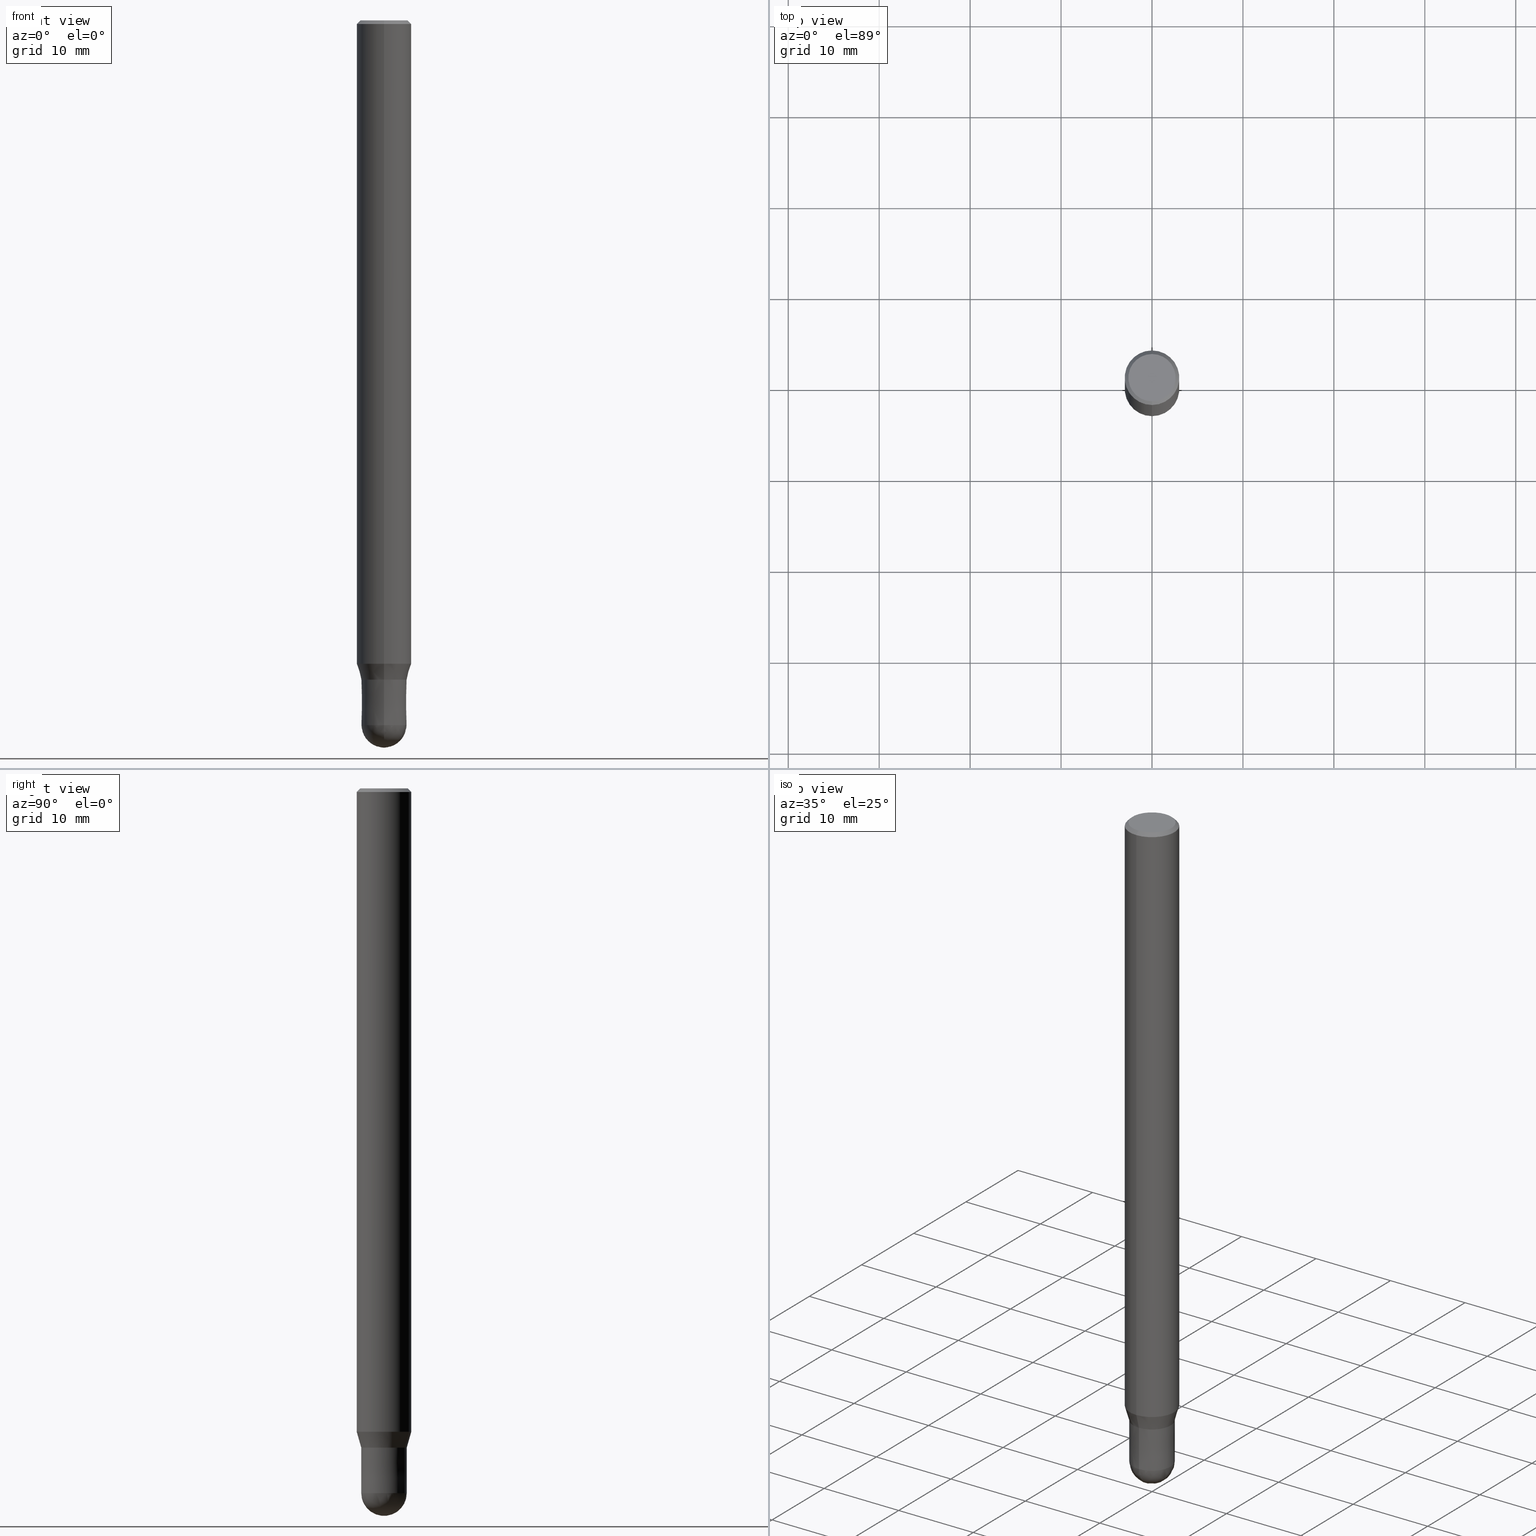
[diagram: canonical four-view strip — front | top / right | iso, engineering-drawing reading convention]
A machine part, canonical four-view strip (front | top / right | iso — engineering-drawing reading convention). The complete STEP part file that produces these views, byte-faithful:
ISO-10303-21;
HEADER;
FILE_DESCRIPTION(('no description'),'unknown implementation level');
FILE_NAME('CFB3050-0750-Huellk.stp','  ',('CIMSOURCE GmbH'),('CADClick - KiM GmbH - www.kimweb.de'),'unknown preprocess','ACIS','unknown authorization');
FILE_SCHEMA(('automotive_design'));
ENDSEC;
DATA;
#1=MECHANICAL_DESIGN_GEOMETRIC_PRESENTATION_REPRESENTATION(' ',(#14,#15,#16,#17,#18,#19,#20,#21,#22,#23,#24,#25,#26,#27,#28,#29,#30,#31,#32,#33,#34,#35,#36,#37,#38,#39,#40,#41,#42,#43,#44,#45,#46,#47,#48,#49,#50,#51,#52,#53,#54,#55,#56,#57,#58,#59,#60,#61,#62,#63,#64,#65,#66),#10);
#2=PRODUCT_DEFINITION_CONTEXT('',#67,'design');
#3=APPLICATION_PROTOCOL_DEFINITION('INTERNATIONAL STANDARD','automotive_design',1994,#67);
#4=PRODUCT_CATEGORY_RELATIONSHIP('NONE','NONE',#68,#69);
#5=SHAPE_DEFINITION_REPRESENTATION(#70,#71);
#6=PRODUCT_DEFINITION_CONTEXT('',#72,'design');
#7=APPLICATION_PROTOCOL_DEFINITION('INTERNATIONAL STANDARD','automotive_design',1994,#72);
#8=PRODUCT_CATEGORY_RELATIONSHIP('NONE','NONE',#73,#74);
#9=SHAPE_DEFINITION_REPRESENTATION(#75,#76);
#10= (GEOMETRIC_REPRESENTATION_CONTEXT(3)GLOBAL_UNCERTAINTY_ASSIGNED_CONTEXT((#79))GLOBAL_UNIT_ASSIGNED_CONTEXT((#81,#82,#83))REPRESENTATION_CONTEXT('NONE','WORKSPACE'));
#14=STYLED_ITEM('',(#85),#86);
#15=STYLED_ITEM('',(#87),#88);
#16=STYLED_ITEM('',(#89),#90);
#17=STYLED_ITEM('',(#91),#92);
#18=STYLED_ITEM('',(#93),#94);
#19=STYLED_ITEM('',(#95),#96);
#20=STYLED_ITEM('',(#97),#98);
#21=STYLED_ITEM('',(#99),#100);
#22=STYLED_ITEM('',(#101),#102);
#23=STYLED_ITEM('',(#103),#104);
#24=STYLED_ITEM('',(#105),#106);
#25=STYLED_ITEM('',(#107),#108);
#26=STYLED_ITEM('',(#109),#110);
#27=STYLED_ITEM('',(#111),#112);
#28=STYLED_ITEM('',(#113),#114);
#29=STYLED_ITEM('',(#115),#116);
#30=STYLED_ITEM('',(#117),#118);
#31=STYLED_ITEM('',(#119),#120);
#32=STYLED_ITEM('',(#121),#122);
#33=STYLED_ITEM('',(#123),#124);
#34=STYLED_ITEM('',(#125),#126);
#35=STYLED_ITEM('',(#127),#128);
#36=STYLED_ITEM('',(#129),#130);
#37=STYLED_ITEM('',(#131),#132);
#38=STYLED_ITEM('',(#133),#134);
#39=STYLED_ITEM('',(#135),#136);
#40=STYLED_ITEM('',(#137),#138);
#41=STYLED_ITEM('',(#139),#140);
#42=STYLED_ITEM('',(#141),#142);
#43=STYLED_ITEM('',(#143),#144);
#44=STYLED_ITEM('',(#145),#146);
#45=STYLED_ITEM('',(#147),#148);
#46=STYLED_ITEM('',(#149),#150);
#47=STYLED_ITEM('',(#151),#152);
#48=STYLED_ITEM('',(#153),#154);
#49=STYLED_ITEM('',(#155),#156);
#50=STYLED_ITEM('',(#157),#158);
#51=STYLED_ITEM('',(#159),#160);
#52=STYLED_ITEM('',(#161),#162);
#53=STYLED_ITEM('',(#163),#164);
#54=STYLED_ITEM('',(#165),#166);
#55=STYLED_ITEM('',(#167),#168);
#56=STYLED_ITEM('',(#169),#170);
#57=STYLED_ITEM('',(#171),#172);
#58=STYLED_ITEM('',(#173),#174);
#59=STYLED_ITEM('',(#175),#176);
#60=STYLED_ITEM('',(#177),#178);
#61=STYLED_ITEM('',(#179),#180);
#62=STYLED_ITEM('',(#181),#182);
#63=STYLED_ITEM('',(#183),#184);
#64=STYLED_ITEM('',(#185),#186);
#65=STYLED_ITEM('',(#187),#188);
#66=STYLED_ITEM('',(#189),#190);
#67=APPLICATION_CONTEXT(' ');
#68=PRODUCT_CATEGORY('part','NONE');
#69=PRODUCT_RELATED_PRODUCT_CATEGORY('detail',' ',(#191));
#70=PRODUCT_DEFINITION_SHAPE('NONE','NONE',#192);
#71=ADVANCED_BREP_SHAPE_REPRESENTATION('1',(#146,#193),#10);
#72=APPLICATION_CONTEXT(' ');
#73=PRODUCT_CATEGORY('part','NONE');
#74=PRODUCT_RELATED_PRODUCT_CATEGORY('detail',' ',(#194));
#75=PRODUCT_DEFINITION_SHAPE('NONE','NONE',#195);
#76=ADVANCED_BREP_SHAPE_REPRESENTATION('2',(#166,#196),#10);
#79=UNCERTAINTY_MEASURE_WITH_UNIT(LENGTH_MEASURE(1.0E-006),#81,'','');
#81= (CONVERSION_BASED_UNIT('MILLIMETRE',#199)LENGTH_UNIT()NAMED_UNIT(#202));
#82= (NAMED_UNIT(#204)PLANE_ANGLE_UNIT()SI_UNIT($,.RADIAN.));
#83= (NAMED_UNIT(#204)SOLID_ANGLE_UNIT()SI_UNIT($,.STERADIAN.));
#85=PRESENTATION_STYLE_ASSIGNMENT((#210));
#86=ADVANCED_FACE('',(#211),#212,.T.);
#87=PRESENTATION_STYLE_ASSIGNMENT((#213));
#88=EDGE_CURVE('',#128,#178,#214,.T.);
#89=PRESENTATION_STYLE_ASSIGNMENT((#215));
#90=EDGE_CURVE('',#144,#140,#216,.T.);
#91=PRESENTATION_STYLE_ASSIGNMENT((#217));
#92=VERTEX_POINT('',#218);
#93=PRESENTATION_STYLE_ASSIGNMENT((#219));
#94=EDGE_CURVE('',#92,#154,#220,.T.);
#95=PRESENTATION_STYLE_ASSIGNMENT((#221));
#96=ADVANCED_FACE('',(#222),#223,.T.);
#97=PRESENTATION_STYLE_ASSIGNMENT((#224));
#98=EDGE_CURVE('',#154,#92,#225,.T.);
#99=PRESENTATION_STYLE_ASSIGNMENT((#226));
#100=ADVANCED_FACE('',(#227),#228,.T.);
#101=PRESENTATION_STYLE_ASSIGNMENT((#229));
#102=VERTEX_POINT('',#230);
#103=PRESENTATION_STYLE_ASSIGNMENT((#231));
#104=EDGE_CURVE('',#168,#178,#232,.T.);
#105=PRESENTATION_STYLE_ASSIGNMENT((#233));
#106=EDGE_CURVE('',#190,#136,#234,.T.);
#107=PRESENTATION_STYLE_ASSIGNMENT((#235));
#108=EDGE_CURVE('',#122,#168,#236,.T.);
#109=PRESENTATION_STYLE_ASSIGNMENT((#237));
#110=VERTEX_POINT('',#238);
#111=PRESENTATION_STYLE_ASSIGNMENT((#239));
#112=EDGE_CURVE('',#136,#186,#240,.T.);
#113=PRESENTATION_STYLE_ASSIGNMENT((#241));
#114=ADVANCED_FACE('',(#242),#243,.T.);
#115=PRESENTATION_STYLE_ASSIGNMENT((#244));
#116=ADVANCED_FACE('',(#245),#246,.T.);
#117=PRESENTATION_STYLE_ASSIGNMENT((#247));
#118=ADVANCED_FACE('',(#248),#249,.T.);
#119=PRESENTATION_STYLE_ASSIGNMENT((#250));
#120=EDGE_CURVE('',#92,#154,#251,.T.);
#121=PRESENTATION_STYLE_ASSIGNMENT((#252));
#122=VERTEX_POINT('',#253);
#123=PRESENTATION_STYLE_ASSIGNMENT((#254));
#124=EDGE_CURVE('',#186,#136,#255,.T.);
#125=PRESENTATION_STYLE_ASSIGNMENT((#256));
#126=ADVANCED_FACE('',(#257),#258,.T.);
#127=PRESENTATION_STYLE_ASSIGNMENT((#259));
#128=VERTEX_POINT('',#260);
#129=PRESENTATION_STYLE_ASSIGNMENT((#261));
#130=ADVANCED_FACE('',(#262),#263,.T.);
#131=PRESENTATION_STYLE_ASSIGNMENT((#264));
#132=EDGE_CURVE('',#102,#180,#265,.T.);
#133=PRESENTATION_STYLE_ASSIGNMENT((#266));
#134=EDGE_CURVE('',#178,#140,#267,.T.);
#135=PRESENTATION_STYLE_ASSIGNMENT((#268));
#136=VERTEX_POINT('',#269);
#137=PRESENTATION_STYLE_ASSIGNMENT((#270));
#138=EDGE_CURVE('',#140,#144,#271,.T.);
#139=PRESENTATION_STYLE_ASSIGNMENT((#272));
#140=VERTEX_POINT('',#273);
#141=PRESENTATION_STYLE_ASSIGNMENT((#274));
#142=ADVANCED_FACE('',(#275,#276),#277,.T.);
#143=PRESENTATION_STYLE_ASSIGNMENT((#278));
#144=VERTEX_POINT('',#279);
#145=PRESENTATION_STYLE_ASSIGNMENT((#280));
#146=MANIFOLD_SOLID_BREP('1',#281);
#147=PRESENTATION_STYLE_ASSIGNMENT((#282));
#148=EDGE_CURVE('',#168,#122,#283,.T.);
#149=PRESENTATION_STYLE_ASSIGNMENT((#284));
#150=EDGE_CURVE('',#144,#128,#285,.T.);
#151=PRESENTATION_STYLE_ASSIGNMENT((#286));
#152=ADVANCED_FACE('',(#287),#288,.T.);
#153=PRESENTATION_STYLE_ASSIGNMENT((#289));
#154=VERTEX_POINT('',#290);
#155=PRESENTATION_STYLE_ASSIGNMENT((#291));
#156=EDGE_CURVE('',#190,#110,#292,.T.);
#157=PRESENTATION_STYLE_ASSIGNMENT((#293));
#158=ADVANCED_FACE('',(#294),#295,.T.);
#159=PRESENTATION_STYLE_ASSIGNMENT((#296));
#160=EDGE_CURVE('',#186,#110,#297,.T.);
#161=PRESENTATION_STYLE_ASSIGNMENT((#298));
#162=ADVANCED_FACE('',(#299),#300,.T.);
#163=PRESENTATION_STYLE_ASSIGNMENT((#301));
#164=EDGE_CURVE('',#92,#180,#302,.T.);
#165=PRESENTATION_STYLE_ASSIGNMENT((#303));
#166=MANIFOLD_SOLID_BREP('2',#304);
#167=PRESENTATION_STYLE_ASSIGNMENT((#305));
#168=VERTEX_POINT('',#306);
#169=PRESENTATION_STYLE_ASSIGNMENT((#307));
#170=EDGE_CURVE('',#180,#102,#308,.T.);
#171=PRESENTATION_STYLE_ASSIGNMENT((#309));
#172=EDGE_CURVE('',#128,#122,#310,.T.);
#173=PRESENTATION_STYLE_ASSIGNMENT((#311));
#174=EDGE_CURVE('',#178,#128,#312,.T.);
#175=PRESENTATION_STYLE_ASSIGNMENT((#313));
#176=ADVANCED_FACE('',(#314),#315,.T.);
#177=PRESENTATION_STYLE_ASSIGNMENT((#316));
#178=VERTEX_POINT('',#317);
#179=PRESENTATION_STYLE_ASSIGNMENT((#318));
#180=VERTEX_POINT('',#319);
#181=PRESENTATION_STYLE_ASSIGNMENT((#320));
#182=ADVANCED_FACE('',(#321),#322,.T.);
#183=PRESENTATION_STYLE_ASSIGNMENT((#323));
#184=EDGE_CURVE('',#102,#154,#324,.T.);
#185=PRESENTATION_STYLE_ASSIGNMENT((#325));
#186=VERTEX_POINT('',#326);
#187=PRESENTATION_STYLE_ASSIGNMENT((#327));
#188=EDGE_CURVE('',#110,#190,#328,.T.);
#189=PRESENTATION_STYLE_ASSIGNMENT((#329));
#190=VERTEX_POINT('',#330);
#191=PRODUCT('1','1','PART-1-DESC',(#331));
#192=PRODUCT_DEFINITION('NONE','NONE',#332,#2);
#193=AXIS2_PLACEMENT_3D('',#333,#334,#335);
#194=PRODUCT('2','2','PART-2-DESC',(#336));
#195=PRODUCT_DEFINITION('NONE','NONE',#337,#6);
#196=AXIS2_PLACEMENT_3D('',#338,#339,#340);
#199=LENGTH_MEASURE_WITH_UNIT(LENGTH_MEASURE(1.0),#341);
#202=DIMENSIONAL_EXPONENTS(1.0,0.0,0.0,0.0,0.0,0.0,0.0);
#204=DIMENSIONAL_EXPONENTS(0.0,0.0,0.0,0.0,0.0,0.0,0.0);
#210=SURFACE_STYLE_USAGE(.BOTH.,#342);
#211=FACE_OUTER_BOUND('',#343,.T.);
#212=CONICAL_SURFACE('',#344,2.8,0.785398163397441);
#213=CURVE_STYLE('',#345,POSITIVE_LENGTH_MEASURE(1.0E-006),#346);
#214=CIRCLE('',#347,3.0);
#215=CURVE_STYLE('',#348,POSITIVE_LENGTH_MEASURE(1.0E-006),#349);
#216=CIRCLE('',#350,3.0);
#217=POINT_STYLE(' ',#351,POSITIVE_LENGTH_MEASURE(1.0E-006),#352);
#218=CARTESIAN_POINT('',(3.06151588455594E-016,-2.5,-77.5));
#219=CURVE_STYLE('',#353,POSITIVE_LENGTH_MEASURE(1.0E-006),#354);
#220=CIRCLE('',#355,2.5);
#221=SURFACE_STYLE_USAGE(.BOTH.,#356);
#222=FACE_OUTER_BOUND('',#357,.T.);
#223=CONICAL_SURFACE('',#358,2.8,0.785398163397441);
#224=CURVE_STYLE('',#359,POSITIVE_LENGTH_MEASURE(1.0E-006),#360);
#225=CIRCLE('',#361,2.5);
#226=SURFACE_STYLE_USAGE(.BOTH.,#362);
#227=FACE_OUTER_BOUND('',#363,.T.);
#228=PLANE('',#364);
#229=POINT_STYLE(' ',#365,POSITIVE_LENGTH_MEASURE(1.0E-006),#366);
#230=CARTESIAN_POINT('',(0.0,2.4999,-72.5));
#231=CURVE_STYLE('',#367,POSITIVE_LENGTH_MEASURE(1.0E-006),#368);
#232=LINE('',#369,#370);
#233=CURVE_STYLE('',#371,POSITIVE_LENGTH_MEASURE(1.0E-006),#372);
#234=LINE('',#373,#374);
#235=CURVE_STYLE('',#375,POSITIVE_LENGTH_MEASURE(1.0E-006),#376);
#236=CIRCLE('',#377,2.6);
#237=POINT_STYLE(' ',#378,POSITIVE_LENGTH_MEASURE(1.0E-006),#379);
#238=CARTESIAN_POINT('',(3.67375783114944E-016,-2.99995,-70.756));
#239=CURVE_STYLE('',#380,POSITIVE_LENGTH_MEASURE(1.0E-006),#381);
#240=CIRCLE('',#382,2.49995);
#241=SURFACE_STYLE_USAGE(.BOTH.,#383);
#242=FACE_OUTER_BOUND('',#384,.T.);
#243=PLANE('',#385);
#244=SURFACE_STYLE_USAGE(.BOTH.,#386);
#245=FACE_OUTER_BOUND('',#387,.T.);
#246=PLANE('',#388);
#247=SURFACE_STYLE_USAGE(.BOTH.,#389);
#248=FACE_OUTER_BOUND('',#390,.T.);
#249=CONICAL_SURFACE('',#391,2.49995,1.99999999974644E-005);
#250=CURVE_STYLE('',#392,POSITIVE_LENGTH_MEASURE(1.0E-006),#393);
#251=CIRCLE('',#394,2.5);
#252=POINT_STYLE(' ',#395,POSITIVE_LENGTH_MEASURE(1.0E-006),#396);
#253=CARTESIAN_POINT('',(3.18397651993818E-016,-2.6,0.0));
#254=CURVE_STYLE('',#397,POSITIVE_LENGTH_MEASURE(1.0E-006),#398);
#255=CIRCLE('',#399,2.49995);
#256=SURFACE_STYLE_USAGE(.BOTH.,#400);
#257=FACE_OUTER_BOUND('',#401,.T.);
#258=CYLINDRICAL_SURFACE('',#402,3.0);
#259=POINT_STYLE(' ',#403,POSITIVE_LENGTH_MEASURE(1.0E-006),#404);
#260=CARTESIAN_POINT('',(3.67381906146713E-016,-3.0,-0.400000000000006));
#261=SURFACE_STYLE_USAGE(.BOTH.,#405);
#262=FACE_OUTER_BOUND('',#406,.T.);
#263=CYLINDRICAL_SURFACE('',#407,3.0);
#264=CURVE_STYLE('',#408,POSITIVE_LENGTH_MEASURE(1.0E-006),#409);
#265=CIRCLE('',#410,2.4999);
#266=CURVE_STYLE('',#411,POSITIVE_LENGTH_MEASURE(1.0E-006),#412);
#267=LINE('',#413,#414);
#268=POINT_STYLE(' ',#415,POSITIVE_LENGTH_MEASURE(1.0E-006),#416);
#269=CARTESIAN_POINT('',(0.0,2.49995,-72.5));
#270=CURVE_STYLE('',#417,POSITIVE_LENGTH_MEASURE(1.0E-006),#418);
#271=CIRCLE('',#419,3.0);
#272=POINT_STYLE(' ',#420,POSITIVE_LENGTH_MEASURE(1.0E-006),#421);
#273=CARTESIAN_POINT('',(0.0,3.0,-70.756));
#274=SURFACE_STYLE_USAGE(.BOTH.,#422);
#275=FACE_OUTER_BOUND('',#423,.T.);
#276=FACE_BOUND('',#424,.T.);
#277=PLANE('',#425);
#278=POINT_STYLE(' ',#426,POSITIVE_LENGTH_MEASURE(1.0E-006),#427);
#279=CARTESIAN_POINT('',(3.67381906146713E-016,-3.0,-70.756));
#280=SURFACE_STYLE_USAGE(.BOTH.,#428);
#281=CLOSED_SHELL('',(#158,#130,#86,#142,#100,#96,#126,#176,#116));
#282=CURVE_STYLE('',#429,POSITIVE_LENGTH_MEASURE(1.0E-006),#430);
#283=CIRCLE('',#431,2.6);
#284=CURVE_STYLE('',#432,POSITIVE_LENGTH_MEASURE(1.0E-006),#433);
#285=LINE('',#434,#435);
#286=SURFACE_STYLE_USAGE(.BOTH.,#436);
#287=FACE_OUTER_BOUND('',#437,.T.);
#288=SPHERICAL_SURFACE('',#438,2.5);
#289=POINT_STYLE(' ',#439,POSITIVE_LENGTH_MEASURE(1.0E-006),#440);
#290=CARTESIAN_POINT('',(0.0,2.5,-77.5));
#291=CURVE_STYLE('',#441,POSITIVE_LENGTH_MEASURE(1.0E-006),#442);
#292=CIRCLE('',#443,2.99995);
#293=SURFACE_STYLE_USAGE(.BOTH.,#444);
#294=FACE_OUTER_BOUND('',#445,.T.);
#295=CONICAL_SURFACE('',#446,2.74995,0.279208199033747);
#296=CURVE_STYLE('',#447,POSITIVE_LENGTH_MEASURE(1.0E-006),#448);
#297=LINE('',#449,#450);
#298=SURFACE_STYLE_USAGE(.BOTH.,#451);
#299=FACE_OUTER_BOUND('',#452,.T.);
#300=SPHERICAL_SURFACE('',#453,2.5);
#301=CURVE_STYLE('',#454,POSITIVE_LENGTH_MEASURE(1.0E-006),#455);
#302=LINE('',#456,#457);
#303=SURFACE_STYLE_USAGE(.BOTH.,#458);
#304=CLOSED_SHELL('',(#162,#118,#114,#182,#152));
#305=POINT_STYLE(' ',#459,POSITIVE_LENGTH_MEASURE(1.0E-006),#460);
#306=CARTESIAN_POINT('',(0.0,2.6,0.0));
#307=CURVE_STYLE('',#461,POSITIVE_LENGTH_MEASURE(1.0E-006),#462);
#308=CIRCLE('',#463,2.4999);
#309=CURVE_STYLE('',#464,POSITIVE_LENGTH_MEASURE(1.0E-006),#465);
#310=LINE('',#466,#467);
#311=CURVE_STYLE('',#468,POSITIVE_LENGTH_MEASURE(1.0E-006),#469);
#312=CIRCLE('',#470,3.0);
#313=SURFACE_STYLE_USAGE(.BOTH.,#471);
#314=FACE_OUTER_BOUND('',#472,.T.);
#315=CONICAL_SURFACE('',#473,2.74995,0.279208199033747);
#316=POINT_STYLE(' ',#474,POSITIVE_LENGTH_MEASURE(1.0E-006),#475);
#317=CARTESIAN_POINT('',(0.0,3.0,-0.400000000000006));
#318=POINT_STYLE(' ',#476,POSITIVE_LENGTH_MEASURE(1.0E-006),#477);
#319=CARTESIAN_POINT('',(3.06139342392056E-016,-2.4999,-72.5));
#320=SURFACE_STYLE_USAGE(.BOTH.,#478);
#321=FACE_OUTER_BOUND('',#479,.T.);
#322=CONICAL_SURFACE('',#480,2.49995,1.99999999974644E-005);
#323=CURVE_STYLE('',#481,POSITIVE_LENGTH_MEASURE(1.0E-006),#482);
#324=LINE('',#483,#484);
#325=POINT_STYLE(' ',#485,POSITIVE_LENGTH_MEASURE(1.0E-006),#486);
#326=CARTESIAN_POINT('',(3.06145465423825E-016,-2.49995,-72.5));
#327=CURVE_STYLE('',#487,POSITIVE_LENGTH_MEASURE(1.0E-006),#488);
#328=CIRCLE('',#489,2.99995);
#329=POINT_STYLE(' ',#490,POSITIVE_LENGTH_MEASURE(1.0E-006),#491);
#330=CARTESIAN_POINT('',(0.0,2.99995,-70.756));
#331=PRODUCT_CONTEXT('',#67,'mechanical');
#332=PRODUCT_DEFINITION_FORMATION_WITH_SPECIFIED_SOURCE(' ','NONE',#191,.NOT_KNOWN.);
#333=CARTESIAN_POINT('',(0.0,0.0,0.0));
#334=DIRECTION('',(0.0,0.0,1.0));
#335=DIRECTION('',(1.0,0.0,0.0));
#336=PRODUCT_CONTEXT('',#72,'mechanical');
#337=PRODUCT_DEFINITION_FORMATION_WITH_SPECIFIED_SOURCE(' ','NONE',#194,.NOT_KNOWN.);
#338=CARTESIAN_POINT('',(0.0,0.0,0.0));
#339=DIRECTION('',(0.0,0.0,1.0));
#340=DIRECTION('',(1.0,0.0,0.0));
#341= (NAMED_UNIT(#202)LENGTH_UNIT()SI_UNIT(.MILLI.,.METRE.));
#342=SURFACE_SIDE_STYLE('',(#493));
#343=EDGE_LOOP('',(#494,#495,#496,#497));
#344=AXIS2_PLACEMENT_3D('',#498,#499,#500);
#345=DRAUGHTING_PRE_DEFINED_CURVE_FONT('continuous');
#346=COLOUR_RGB('',0.498039215803146,0.498039215803146,0.498039215803146);
#347=AXIS2_PLACEMENT_3D('',#501,#502,#503);
#348=DRAUGHTING_PRE_DEFINED_CURVE_FONT('continuous');
#349=COLOUR_RGB('',0.498039215803146,0.498039215803146,0.498039215803146);
#350=AXIS2_PLACEMENT_3D('',#504,#505,#506);
#351=PRE_DEFINED_MARKER('');
#352=COLOUR_RGB('',0.800000011920929,0.800000011920929,0.800000011920929);
#353=DRAUGHTING_PRE_DEFINED_CURVE_FONT('continuous');
#354=COLOUR_RGB('',0.800000011920929,0.800000011920929,0.800000011920929);
#355=AXIS2_PLACEMENT_3D('',#507,#508,#509);
#356=SURFACE_SIDE_STYLE('',(#510));
#357=EDGE_LOOP('',(#511,#512,#513,#514));
#358=AXIS2_PLACEMENT_3D('',#515,#516,#517);
#359=DRAUGHTING_PRE_DEFINED_CURVE_FONT('continuous');
#360=COLOUR_RGB('',0.800000011920929,0.800000011920929,0.800000011920929);
#361=AXIS2_PLACEMENT_3D('',#518,#519,#520);
#362=SURFACE_SIDE_STYLE('',(#521));
#363=EDGE_LOOP('',(#522,#523));
#364=AXIS2_PLACEMENT_3D('',#524,#525,#526);
#365=PRE_DEFINED_MARKER('');
#366=COLOUR_RGB('',0.800000011920929,0.800000011920929,0.800000011920929);
#367=DRAUGHTING_PRE_DEFINED_CURVE_FONT('continuous');
#368=COLOUR_RGB('',0.498039215803146,0.498039215803146,0.498039215803146);
#369=CARTESIAN_POINT('',(-3.42889779070266E-016,2.8,-0.200000000000003));
#370=VECTOR('',#527,1.0);
#371=DRAUGHTING_PRE_DEFINED_CURVE_FONT('continuous');
#372=COLOUR_RGB('',0.498039215803146,0.498039215803146,0.498039215803146);
#373=CARTESIAN_POINT('',(-3.36760624269385E-016,2.74995,-71.628));
#374=VECTOR('',#528,1.0);
#375=DRAUGHTING_PRE_DEFINED_CURVE_FONT('continuous');
#376=COLOUR_RGB('',0.498039215803146,0.498039215803146,0.498039215803146);
#377=AXIS2_PLACEMENT_3D('',#529,#530,#531);
#378=PRE_DEFINED_MARKER('');
#379=COLOUR_RGB('',0.498039215803146,0.498039215803146,0.498039215803146);
#380=DRAUGHTING_PRE_DEFINED_CURVE_FONT('continuous');
#381=COLOUR_RGB('',0.498039215803146,0.498039215803146,0.498039215803146);
#382=AXIS2_PLACEMENT_3D('',#532,#533,#534);
#383=SURFACE_SIDE_STYLE('',(#535));
#384=EDGE_LOOP('',(#536,#537));
#385=AXIS2_PLACEMENT_3D('',#538,#539,#540);
#386=SURFACE_SIDE_STYLE('',(#541));
#387=EDGE_LOOP('',(#542,#543));
#388=AXIS2_PLACEMENT_3D('',#544,#545,#546);
#389=SURFACE_SIDE_STYLE('',(#547));
#390=EDGE_LOOP('',(#548,#549,#550,#551));
#391=AXIS2_PLACEMENT_3D('',#552,#553,#554);
#392=DRAUGHTING_PRE_DEFINED_CURVE_FONT('continuous');
#393=COLOUR_RGB('',0.800000011920929,0.800000011920929,0.800000011920929);
#394=AXIS2_PLACEMENT_3D('',#555,#556,#557);
#395=PRE_DEFINED_MARKER('');
#396=COLOUR_RGB('',0.498039215803146,0.498039215803146,0.498039215803146);
#397=DRAUGHTING_PRE_DEFINED_CURVE_FONT('continuous');
#398=COLOUR_RGB('',0.498039215803146,0.498039215803146,0.498039215803146);
#399=AXIS2_PLACEMENT_3D('',#558,#559,#560);
#400=SURFACE_SIDE_STYLE('',(#561));
#401=EDGE_LOOP('',(#562,#563,#564,#565));
#402=AXIS2_PLACEMENT_3D('',#566,#567,#568);
#403=PRE_DEFINED_MARKER('');
#404=COLOUR_RGB('',0.498039215803146,0.498039215803146,0.498039215803146);
#405=SURFACE_SIDE_STYLE('',(#569));
#406=EDGE_LOOP('',(#570,#571,#572,#573));
#407=AXIS2_PLACEMENT_3D('',#574,#575,#576);
#408=DRAUGHTING_PRE_DEFINED_CURVE_FONT('continuous');
#409=COLOUR_RGB('',0.800000011920929,0.800000011920929,0.800000011920929);
#410=AXIS2_PLACEMENT_3D('',#577,#578,#579);
#411=DRAUGHTING_PRE_DEFINED_CURVE_FONT('continuous');
#412=COLOUR_RGB('',0.498039215803146,0.498039215803146,0.498039215803146);
#413=CARTESIAN_POINT('',(-3.67381906146713E-016,3.0,-35.578));
#414=VECTOR('',#580,1.0);
#415=PRE_DEFINED_MARKER('');
#416=COLOUR_RGB('',0.498039215803146,0.498039215803146,0.498039215803146);
#417=DRAUGHTING_PRE_DEFINED_CURVE_FONT('continuous');
#418=COLOUR_RGB('',0.498039215803146,0.498039215803146,0.498039215803146);
#419=AXIS2_PLACEMENT_3D('',#581,#582,#583);
#420=PRE_DEFINED_MARKER('');
#421=COLOUR_RGB('',0.498039215803146,0.498039215803146,0.498039215803146);
#422=SURFACE_SIDE_STYLE('',(#584));
#423=EDGE_LOOP('',(#585,#586));
#424=EDGE_LOOP('',(#587,#588));
#425=AXIS2_PLACEMENT_3D('',#589,#590,#591);
#426=PRE_DEFINED_MARKER('');
#427=COLOUR_RGB('',0.498039215803146,0.498039215803146,0.498039215803146);
#428=SURFACE_SIDE_STYLE('',(#592));
#429=DRAUGHTING_PRE_DEFINED_CURVE_FONT('continuous');
#430=COLOUR_RGB('',0.498039215803146,0.498039215803146,0.498039215803146);
#431=AXIS2_PLACEMENT_3D('',#593,#594,#595);
#432=DRAUGHTING_PRE_DEFINED_CURVE_FONT('continuous');
#433=COLOUR_RGB('',0.498039215803146,0.498039215803146,0.498039215803146);
#434=CARTESIAN_POINT('',(3.67381906146713E-016,-3.0,-35.578));
#435=VECTOR('',#596,1.0);
#436=SURFACE_SIDE_STYLE('',(#597));
#437=EDGE_LOOP('',(#598,#599));
#438=AXIS2_PLACEMENT_3D('',#600,#601,#602);
#439=PRE_DEFINED_MARKER('');
#440=COLOUR_RGB('',0.800000011920929,0.800000011920929,0.800000011920929);
#441=DRAUGHTING_PRE_DEFINED_CURVE_FONT('continuous');
#442=COLOUR_RGB('',0.498039215803146,0.498039215803146,0.498039215803146);
#443=AXIS2_PLACEMENT_3D('',#603,#604,#605);
#444=SURFACE_SIDE_STYLE('',(#606));
#445=EDGE_LOOP('',(#607,#608,#609,#610));
#446=AXIS2_PLACEMENT_3D('',#611,#612,#613);
#447=DRAUGHTING_PRE_DEFINED_CURVE_FONT('continuous');
#448=COLOUR_RGB('',0.498039215803146,0.498039215803146,0.498039215803146);
#449=CARTESIAN_POINT('',(3.36760624269385E-016,-2.74995,-71.628));
#450=VECTOR('',#614,1.0);
#451=SURFACE_SIDE_STYLE('',(#615));
#452=EDGE_LOOP('',(#616,#617));
#453=AXIS2_PLACEMENT_3D('',#618,#619,#620);
#454=DRAUGHTING_PRE_DEFINED_CURVE_FONT('continuous');
#455=COLOUR_RGB('',0.800000011920929,0.800000011920929,0.800000011920929);
#456=CARTESIAN_POINT('',(3.06145465423825E-016,-2.49995,-75.0));
#457=VECTOR('',#621,1.0);
#458=SURFACE_SIDE_STYLE('',(#622));
#459=PRE_DEFINED_MARKER('');
#460=COLOUR_RGB('',0.498039215803146,0.498039215803146,0.498039215803146);
#461=DRAUGHTING_PRE_DEFINED_CURVE_FONT('continuous');
#462=COLOUR_RGB('',0.800000011920929,0.800000011920929,0.800000011920929);
#463=AXIS2_PLACEMENT_3D('',#623,#624,#625);
#464=DRAUGHTING_PRE_DEFINED_CURVE_FONT('continuous');
#465=COLOUR_RGB('',0.498039215803146,0.498039215803146,0.498039215803146);
#466=CARTESIAN_POINT('',(3.42889779070266E-016,-2.8,-0.200000000000003));
#467=VECTOR('',#626,1.0);
#468=DRAUGHTING_PRE_DEFINED_CURVE_FONT('continuous');
#469=COLOUR_RGB('',0.498039215803146,0.498039215803146,0.498039215803146);
#470=AXIS2_PLACEMENT_3D('',#627,#628,#629);
#471=SURFACE_SIDE_STYLE('',(#630));
#472=EDGE_LOOP('',(#631,#632,#633,#634));
#473=AXIS2_PLACEMENT_3D('',#635,#636,#637);
#474=PRE_DEFINED_MARKER('');
#475=COLOUR_RGB('',0.498039215803146,0.498039215803146,0.498039215803146);
#476=PRE_DEFINED_MARKER('');
#477=COLOUR_RGB('',0.800000011920929,0.800000011920929,0.800000011920929);
#478=SURFACE_SIDE_STYLE('',(#638));
#479=EDGE_LOOP('',(#639,#640,#641,#642));
#480=AXIS2_PLACEMENT_3D('',#643,#644,#645);
#481=DRAUGHTING_PRE_DEFINED_CURVE_FONT('continuous');
#482=COLOUR_RGB('',0.800000011920929,0.800000011920929,0.800000011920929);
#483=CARTESIAN_POINT('',(-3.06145465423825E-016,2.49995,-75.0));
#484=VECTOR('',#646,1.0);
#485=PRE_DEFINED_MARKER('');
#486=COLOUR_RGB('',0.498039215803146,0.498039215803146,0.498039215803146);
#487=DRAUGHTING_PRE_DEFINED_CURVE_FONT('continuous');
#488=COLOUR_RGB('',0.498039215803146,0.498039215803146,0.498039215803146);
#489=AXIS2_PLACEMENT_3D('',#647,#648,#649);
#490=PRE_DEFINED_MARKER('');
#491=COLOUR_RGB('',0.498039215803146,0.498039215803146,0.498039215803146);
#493=SURFACE_STYLE_FILL_AREA(#650);
#494=ORIENTED_EDGE('',*,*,#104,.F.);
#495=ORIENTED_EDGE('',*,*,#148,.T.);
#496=ORIENTED_EDGE('',*,*,#172,.F.);
#497=ORIENTED_EDGE('',*,*,#174,.F.);
#498=CARTESIAN_POINT('',(0.0,0.0,-0.200000000000003));
#499=DIRECTION('',(0.0,-0.0,-1.0));
#500=DIRECTION('',(0.0,1.0,0.0));
#501=CARTESIAN_POINT('',(0.0,0.0,-0.400000000000006));
#502=DIRECTION('',(0.0,0.0,-1.0));
#503=DIRECTION('',(0.0,1.0,0.0));
#504=CARTESIAN_POINT('',(0.0,0.0,-70.756));
#505=DIRECTION('',(0.0,0.0,-1.0));
#506=DIRECTION('',(0.0,1.0,0.0));
#507=CARTESIAN_POINT('',(0.0,0.0,-77.5));
#508=DIRECTION('',(1.0,0.0,1.22460635382238E-016));
#509=DIRECTION('',(-1.22460635382238E-016,0.0,1.0));
#510=SURFACE_STYLE_FILL_AREA(#651);
#511=ORIENTED_EDGE('',*,*,#104,.T.);
#512=ORIENTED_EDGE('',*,*,#88,.F.);
#513=ORIENTED_EDGE('',*,*,#172,.T.);
#514=ORIENTED_EDGE('',*,*,#108,.T.);
#515=CARTESIAN_POINT('',(0.0,0.0,-0.200000000000003));
#516=DIRECTION('',(0.0,-0.0,-1.0));
#517=DIRECTION('',(0.0,1.0,0.0));
#518=CARTESIAN_POINT('',(0.0,0.0,-77.5));
#519=DIRECTION('',(0.0,0.0,-1.0));
#520=DIRECTION('',(0.0,1.0,0.0));
#521=SURFACE_STYLE_FILL_AREA(#652);
#522=ORIENTED_EDGE('',*,*,#148,.F.);
#523=ORIENTED_EDGE('',*,*,#108,.F.);
#524=CARTESIAN_POINT('',(0.0,1.3,0.0));
#525=DIRECTION('',(-0.0,0.0,1.0));
#526=DIRECTION('',(0.0,-1.0,0.0));
#527=DIRECTION('',(-8.65927457071929E-017,0.707106781186542,-0.707106781186553));
#528=DIRECTION('',(3.37494895041124E-017,-0.275594597388538,-0.961273955691222));
#529=CARTESIAN_POINT('',(0.0,0.0,0.0));
#530=DIRECTION('',(0.0,0.0,-1.0));
#531=DIRECTION('',(0.0,1.0,0.0));
#532=CARTESIAN_POINT('',(0.0,0.0,-72.5));
#533=DIRECTION('',(0.0,0.0,-1.0));
#534=DIRECTION('',(0.0,1.0,0.0));
#535=SURFACE_STYLE_FILL_AREA(#653);
#536=ORIENTED_EDGE('',*,*,#132,.F.);
#537=ORIENTED_EDGE('',*,*,#170,.F.);
#538=CARTESIAN_POINT('',(0.0,1.24995,-72.5));
#539=DIRECTION('',(-0.0,0.0,1.0));
#540=DIRECTION('',(0.0,-1.0,0.0));
#541=SURFACE_STYLE_FILL_AREA(#654);
#542=ORIENTED_EDGE('',*,*,#112,.T.);
#543=ORIENTED_EDGE('',*,*,#124,.T.);
#544=CARTESIAN_POINT('',(0.0,1.249975,-72.5));
#545=DIRECTION('',(0.0,0.0,-1.0));
#546=DIRECTION('',(0.0,1.0,0.0));
#547=SURFACE_STYLE_FILL_AREA(#655);
#548=ORIENTED_EDGE('',*,*,#184,.F.);
#549=ORIENTED_EDGE('',*,*,#132,.T.);
#550=ORIENTED_EDGE('',*,*,#164,.F.);
#551=ORIENTED_EDGE('',*,*,#98,.F.);
#552=CARTESIAN_POINT('',(0.0,0.0,-75.0));
#553=DIRECTION('',(0.0,-0.0,-1.0));
#554=DIRECTION('',(0.0,1.0,0.0));
#555=CARTESIAN_POINT('',(0.0,0.0,-77.5));
#556=DIRECTION('',(0.0,0.0,-1.0));
#557=DIRECTION('',(0.0,1.0,0.0));
#558=CARTESIAN_POINT('',(0.0,0.0,-72.5));
#559=DIRECTION('',(0.0,0.0,-1.0));
#560=DIRECTION('',(0.0,1.0,0.0));
#561=SURFACE_STYLE_FILL_AREA(#656);
#562=ORIENTED_EDGE('',*,*,#134,.T.);
#563=ORIENTED_EDGE('',*,*,#90,.F.);
#564=ORIENTED_EDGE('',*,*,#150,.T.);
#565=ORIENTED_EDGE('',*,*,#88,.T.);
#566=CARTESIAN_POINT('',(0.0,0.0,-35.578));
#567=DIRECTION('',(-0.0,-0.0,1.0));
#568=DIRECTION('',(0.0,1.0,0.0));
#569=SURFACE_STYLE_FILL_AREA(#657);
#570=ORIENTED_EDGE('',*,*,#134,.F.);
#571=ORIENTED_EDGE('',*,*,#174,.T.);
#572=ORIENTED_EDGE('',*,*,#150,.F.);
#573=ORIENTED_EDGE('',*,*,#138,.F.);
#574=CARTESIAN_POINT('',(0.0,0.0,-35.578));
#575=DIRECTION('',(-0.0,-0.0,1.0));
#576=DIRECTION('',(0.0,1.0,0.0));
#577=CARTESIAN_POINT('',(0.0,0.0,-72.5));
#578=DIRECTION('',(0.0,0.0,-1.0));
#579=DIRECTION('',(0.0,1.0,0.0));
#580=DIRECTION('',(0.0,0.0,-1.0));
#581=CARTESIAN_POINT('',(0.0,0.0,-70.756));
#582=DIRECTION('',(0.0,0.0,-1.0));
#583=DIRECTION('',(0.0,1.0,0.0));
#584=SURFACE_STYLE_FILL_AREA(#658);
#585=ORIENTED_EDGE('',*,*,#138,.T.);
#586=ORIENTED_EDGE('',*,*,#90,.T.);
#587=ORIENTED_EDGE('',*,*,#156,.F.);
#588=ORIENTED_EDGE('',*,*,#188,.F.);
#589=CARTESIAN_POINT('',(0.0,1.5,-70.756));
#590=DIRECTION('',(0.0,0.0,-1.0));
#591=DIRECTION('',(0.0,1.0,0.0));
#592=SURFACE_STYLE_FILL_AREA(#659);
#593=CARTESIAN_POINT('',(0.0,0.0,0.0));
#594=DIRECTION('',(0.0,0.0,-1.0));
#595=DIRECTION('',(0.0,1.0,0.0));
#596=DIRECTION('',(-0.0,-0.0,1.0));
#597=SURFACE_STYLE_FILL_AREA(#660);
#598=ORIENTED_EDGE('',*,*,#94,.T.);
#599=ORIENTED_EDGE('',*,*,#98,.T.);
#600=CARTESIAN_POINT('',(0.0,0.0,-77.5));
#601=DIRECTION('',(0.0,1.0,0.0));
#602=DIRECTION('',(0.0,0.0,-1.0));
#603=CARTESIAN_POINT('',(0.0,0.0,-70.756));
#604=DIRECTION('',(0.0,0.0,-1.0));
#605=DIRECTION('',(0.0,1.0,0.0));
#606=SURFACE_STYLE_FILL_AREA(#661);
#607=ORIENTED_EDGE('',*,*,#106,.F.);
#608=ORIENTED_EDGE('',*,*,#156,.T.);
#609=ORIENTED_EDGE('',*,*,#160,.F.);
#610=ORIENTED_EDGE('',*,*,#112,.F.);
#611=CARTESIAN_POINT('',(0.0,0.0,-71.628));
#612=DIRECTION('',(-0.0,-0.0,1.0));
#613=DIRECTION('',(0.0,1.0,0.0));
#614=DIRECTION('',(3.37494895041124E-017,-0.275594597388538,0.961273955691222));
#615=SURFACE_STYLE_FILL_AREA(#662);
#616=ORIENTED_EDGE('',*,*,#94,.F.);
#617=ORIENTED_EDGE('',*,*,#120,.T.);
#618=CARTESIAN_POINT('',(0.0,0.0,-77.5));
#619=DIRECTION('',(0.0,1.0,0.0));
#620=DIRECTION('',(0.0,0.0,-1.0));
#621=DIRECTION('',(-2.44921270717096E-021,1.9999999996131E-005,0.9999999998));
#622=SURFACE_STYLE_FILL_AREA(#663);
#623=CARTESIAN_POINT('',(0.0,0.0,-72.5));
#624=DIRECTION('',(0.0,0.0,-1.0));
#625=DIRECTION('',(0.0,1.0,0.0));
#626=DIRECTION('',(-8.65927457071929E-017,0.707106781186542,0.707106781186553));
#627=CARTESIAN_POINT('',(0.0,0.0,-0.400000000000006));
#628=DIRECTION('',(0.0,0.0,-1.0));
#629=DIRECTION('',(0.0,1.0,0.0));
#630=SURFACE_STYLE_FILL_AREA(#664);
#631=ORIENTED_EDGE('',*,*,#106,.T.);
#632=ORIENTED_EDGE('',*,*,#124,.F.);
#633=ORIENTED_EDGE('',*,*,#160,.T.);
#634=ORIENTED_EDGE('',*,*,#188,.T.);
#635=CARTESIAN_POINT('',(0.0,0.0,-71.628));
#636=DIRECTION('',(-0.0,-0.0,1.0));
#637=DIRECTION('',(0.0,1.0,0.0));
#638=SURFACE_STYLE_FILL_AREA(#665);
#639=ORIENTED_EDGE('',*,*,#184,.T.);
#640=ORIENTED_EDGE('',*,*,#120,.F.);
#641=ORIENTED_EDGE('',*,*,#164,.T.);
#642=ORIENTED_EDGE('',*,*,#170,.T.);
#643=CARTESIAN_POINT('',(0.0,0.0,-75.0));
#644=DIRECTION('',(0.0,-0.0,-1.0));
#645=DIRECTION('',(0.0,1.0,0.0));
#646=DIRECTION('',(-2.44921270717096E-021,1.9999999996131E-005,-0.9999999998));
#647=CARTESIAN_POINT('',(0.0,0.0,-70.756));
#648=DIRECTION('',(0.0,0.0,-1.0));
#649=DIRECTION('',(0.0,1.0,0.0));
#650=FILL_AREA_STYLE('',(#666));
#651=FILL_AREA_STYLE('',(#667));
#652=FILL_AREA_STYLE('',(#668));
#653=FILL_AREA_STYLE('',(#669));
#654=FILL_AREA_STYLE('',(#670));
#655=FILL_AREA_STYLE('',(#671));
#656=FILL_AREA_STYLE('',(#672));
#657=FILL_AREA_STYLE('',(#673));
#658=FILL_AREA_STYLE('',(#674));
#659=FILL_AREA_STYLE('',(#675));
#660=FILL_AREA_STYLE('',(#676));
#661=FILL_AREA_STYLE('',(#677));
#662=FILL_AREA_STYLE('',(#678));
#663=FILL_AREA_STYLE('',(#679));
#664=FILL_AREA_STYLE('',(#680));
#665=FILL_AREA_STYLE('',(#681));
#666=FILL_AREA_STYLE_COLOUR('',#682);
#667=FILL_AREA_STYLE_COLOUR('',#683);
#668=FILL_AREA_STYLE_COLOUR('',#684);
#669=FILL_AREA_STYLE_COLOUR('',#685);
#670=FILL_AREA_STYLE_COLOUR('',#686);
#671=FILL_AREA_STYLE_COLOUR('',#687);
#672=FILL_AREA_STYLE_COLOUR('',#688);
#673=FILL_AREA_STYLE_COLOUR('',#689);
#674=FILL_AREA_STYLE_COLOUR('',#690);
#675=FILL_AREA_STYLE_COLOUR('',#691);
#676=FILL_AREA_STYLE_COLOUR('',#692);
#677=FILL_AREA_STYLE_COLOUR('',#693);
#678=FILL_AREA_STYLE_COLOUR('',#694);
#679=FILL_AREA_STYLE_COLOUR('',#695);
#680=FILL_AREA_STYLE_COLOUR('',#696);
#681=FILL_AREA_STYLE_COLOUR('',#697);
#682=COLOUR_RGB('',0.498039215803146,0.498039215803146,0.498039215803146);
#683=COLOUR_RGB('',0.498039215803146,0.498039215803146,0.498039215803146);
#684=COLOUR_RGB('',0.498039215803146,0.498039215803146,0.498039215803146);
#685=COLOUR_RGB('',0.800000011920929,0.800000011920929,0.800000011920929);
#686=COLOUR_RGB('',0.498039215803146,0.498039215803146,0.498039215803146);
#687=COLOUR_RGB('',0.800000011920929,0.800000011920929,0.800000011920929);
#688=COLOUR_RGB('',0.498039215803146,0.498039215803146,0.498039215803146);
#689=COLOUR_RGB('',0.498039215803146,0.498039215803146,0.498039215803146);
#690=COLOUR_RGB('',0.498039215803146,0.498039215803146,0.498039215803146);
#691=COLOUR_RGB('',0.498039215803146,0.498039215803146,0.498039215803146);
#692=COLOUR_RGB('',0.800000011920929,0.800000011920929,0.800000011920929);
#693=COLOUR_RGB('',0.498039215803146,0.498039215803146,0.498039215803146);
#694=COLOUR_RGB('',0.800000011920929,0.800000011920929,0.800000011920929);
#695=COLOUR_RGB('',0.800000011920929,0.800000011920929,0.800000011920929);
#696=COLOUR_RGB('',0.498039215803146,0.498039215803146,0.498039215803146);
#697=COLOUR_RGB('',0.800000011920929,0.800000011920929,0.800000011920929);
#698=AXIS2_PLACEMENT_3D('PCS',#699,#700,#701);
#699=CARTESIAN_POINT('',(0.0,0.0,0.0));
#700=DIRECTION('',(0.0,0.0,1.0));
#701=DIRECTION('',(1.0,0.0,0.0));
#702=AXIS2_PLACEMENT_3D('CIP',#703,#704,#705);
#703=CARTESIAN_POINT('',(0.0,0.0,-80.0));
#704=DIRECTION('',(0.0,0.0,1.0));
#705=DIRECTION('',(1.0,0.0,0.0));
#706=AXIS2_PLACEMENT_3D('CRP',#707,#708,#709);
#707=CARTESIAN_POINT('',(-2.5,0.0,-80.0));
#708=DIRECTION('',(0.0,0.0,1.0));
#709=DIRECTION('',(1.0,0.0,0.0));
#710=AXIS2_PLACEMENT_3D('MCS',#711,#712,#713);
#711=CARTESIAN_POINT('',(0.0,0.0,-70.756));
#712=DIRECTION('',(0.0,0.0,1.0));
#713=DIRECTION('',(1.0,0.0,0.0));
#714=CONSTRUCTIVE_GEOMETRY_REPRESENTATION_RELATIONSHIP('coordinate systems',$,#71,#715);
#715=CONSTRUCTIVE_GEOMETRY_REPRESENTATION('coordinate systems',(#698,#702,#706,#710),#10);
ENDSEC;
END-ISO-10303-21;
